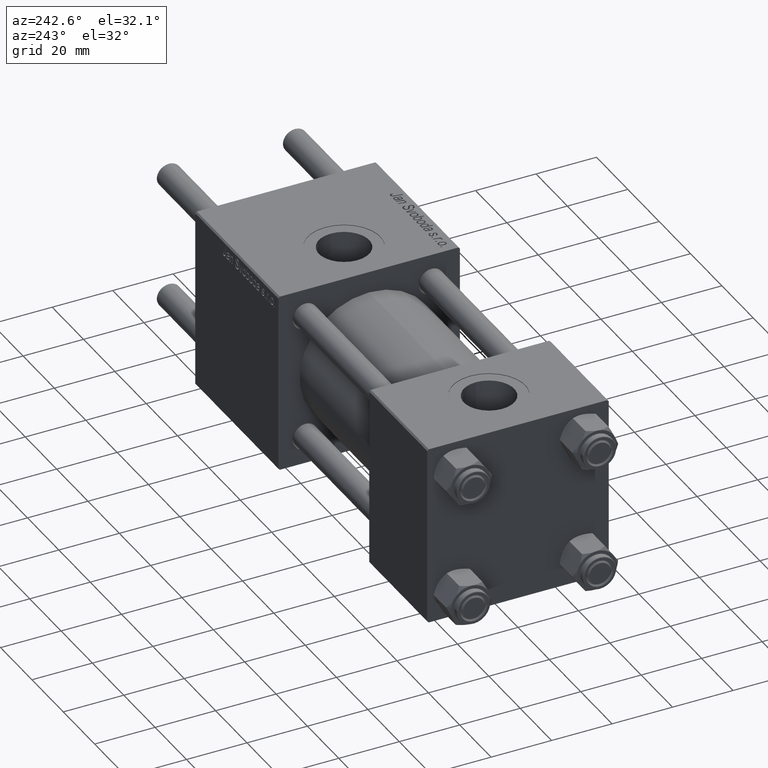
[diagram: clean part render]
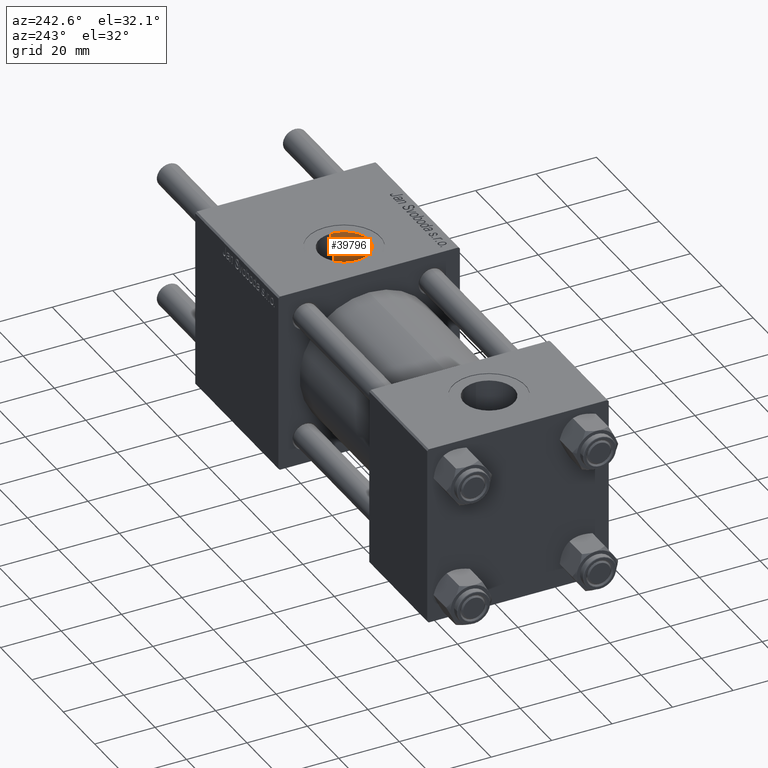
[diagram: same view with one face highlighted and labeled with its STEP entity id]
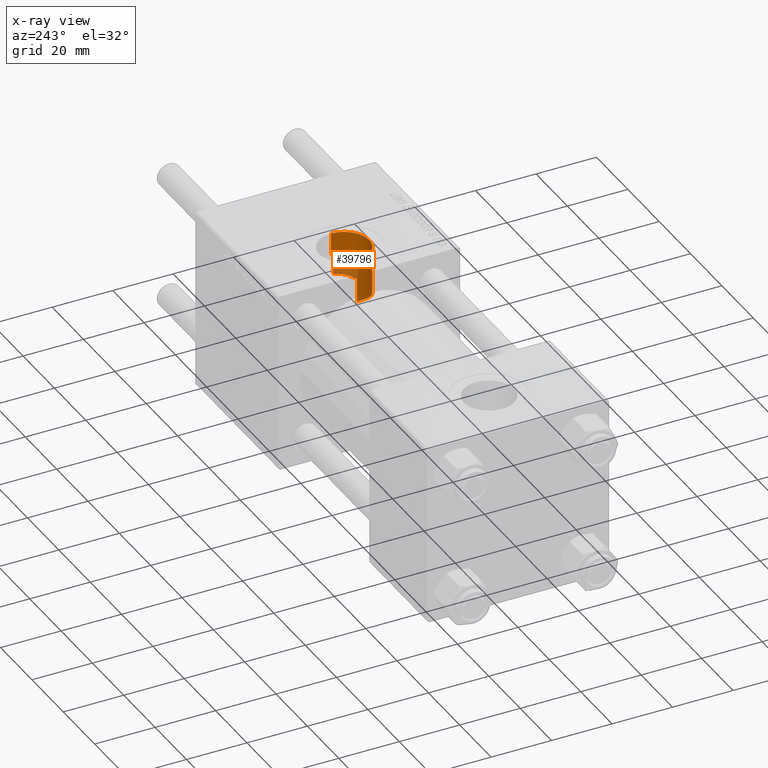
[diagram: x-ray of the same camera — body ghosted, the highlighted face saturated]
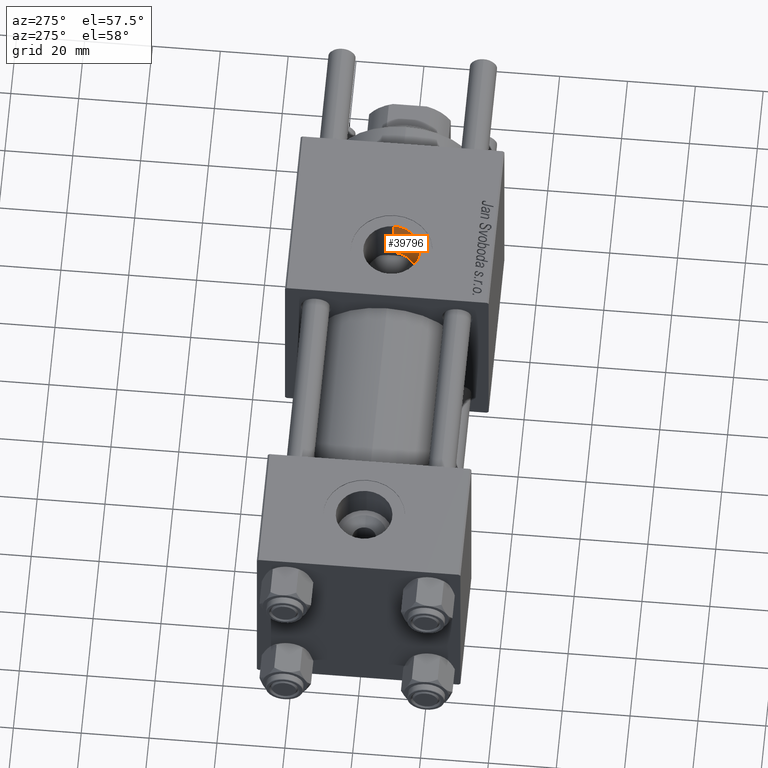
[diagram: same view with one face highlighted and labeled with its STEP entity id]
A machine part, auxiliary view. The second image highlights one B-rep face of the part: STEP entity #39796.
The next image is the same camera in x-ray: the body ghosted, the highlighted face saturated — about 10% of this face is hidden behind the body in this view.
A second angle (auxiliary view) of the same face is appended — the face is thin or edge-on in the first view.
In plain terms, the highlighted cylindrical surface (edge-blend (fillet) strip) has radius 8.33 mm, axis along (0, 0, -1).
Its self-contained STEP definition (entity closure, byte-faithful):
#82 = DIRECTION ( 'NONE',  ( -0.000000000000000000, -0.000000000000000000, 1.000000000000000000 ) ) ;
#244 = ORIENTED_EDGE ( 'NONE', *, *, #18734, .F. ) ;
#720 = CARTESIAN_POINT ( 'NONE',  ( 111.0000000000000000, -3.469446951953613794E-15, 29.79999999999999716 ) ) ;
#784 = ORIENTED_EDGE ( 'NONE', *, *, #55874, .F. ) ;
#1014 = LINE ( 'NONE', #19743, #27698 ) ;
#1414 = CYLINDRICAL_SURFACE ( 'NONE', #3961, 8.330000000000003624 ) ;
#3212 = CARTESIAN_POINT ( 'NONE',  ( 104.8421395764249837, -5.622509492967815881, 14.44759832893447360 ) ) ;
#3794 = CARTESIAN_POINT ( 'NONE',  ( 104.1369027071221751, -4.736043274220092414, 14.76252165391442794 ) ) ;
#3961 = AXIS2_PLACEMENT_3D ( 'NONE', #46964, #6157, #24312 ) ;
#4088 = CARTESIAN_POINT ( 'NONE',  ( 105.1064272110299385, -5.898864207807588578, 14.33631558793831573 ) ) ;
#4838 = CARTESIAN_POINT ( 'NONE',  ( 119.2999999999999829, -0.7063285354565423946, 52.79999999999999716 ) ) ;
#5445 = CARTESIAN_POINT ( 'NONE',  ( 118.2557022334251258, -4.107191428843018244, 14.94947048340120332 ) ) ;
#5742 = CARTESIAN_POINT ( 'NONE',  ( 119.2999999999999829, -0.7063285354565423946, 15.48389808801387701 ) ) ;
#6157 = DIRECTION ( 'NONE',  ( 0.000000000000000000, 0.000000000000000000, -1.000000000000000000 ) ) ;
#6344 = DIRECTION ( 'NONE',  ( 0.000000000000000000, 0.000000000000000000, -1.000000000000000000 ) ) ;
#6620 = CARTESIAN_POINT ( 'NONE',  ( 116.2310764146980091, -6.491922975836205367, 14.07719584522191347 ) ) ;
#6635 = VERTEX_POINT ( 'NONE', #50222 ) ;
#7681 = CARTESIAN_POINT ( 'NONE',  ( 106.5580543014319232, -7.088758972554062510, 13.78970152060303711 ) ) ;
#7963 = CARTESIAN_POINT ( 'NONE',  ( 104.3580999100944950, -5.041529647880462761, 14.66044642165734757 ) ) ;
#8703 = CARTESIAN_POINT ( 'NONE',  ( 119.3300000000000125, 2.755455270027974659E-15, 22.50000000000000355 ) ) ;
#8853 = CARTESIAN_POINT ( 'NONE',  ( 102.6699999999996180, -2.713081726590588117E-14, 15.50000000000020428 ) ) ;
#9901 = CARTESIAN_POINT ( 'NONE',  ( 115.0719793388101806, -7.275582495151264872, 13.68755679569670036 ) ) ;
#10168 = EDGE_CURVE ( 'NONE', #58283, #13254, #54926, .T. ) ;
#11850 = EDGE_CURVE ( 'NONE', #22007, #13254, #20757, .T. ) ;
#12725 = CARTESIAN_POINT ( 'NONE',  ( 102.6985123997140477, -0.7916320528489119157, 15.48462509825850653 ) ) ;
#13250 = EDGE_CURVE ( 'NONE', #25769, #23843, #56836, .T. ) ;
#13254 = VERTEX_POINT ( 'NONE', #42074 ) ;
#14127 = CARTESIAN_POINT ( 'NONE',  ( 119.2999999999999829, -0.7063285354565423946, 15.48389808801387701 ) ) ;
#14950 = CARTESIAN_POINT ( 'NONE',  ( 117.6814859054843367, -4.986894924185446776, 14.67899340481585746 ) ) ;
#15096 = VECTOR ( 'NONE', #82, 1000.000000000000000 ) ;
#15285 = CARTESIAN_POINT ( 'NONE',  ( 102.6700000000000017, -3.469446951953613794E-15, 52.79999999999999716 ) ) ;
#15732 = AXIS2_PLACEMENT_3D ( 'NONE', #55844, #33185, #43024 ) ;
#17177 = CARTESIAN_POINT ( 'NONE',  ( 103.7356139241942827, -4.094008462183724717, 14.95330218343579709 ) ) ;
#17231 = EDGE_CURVE ( 'NONE', #25769, #6635, #23572, .T. ) ;
#18734 = EDGE_CURVE ( 'NONE', #30753, #58283, #40816, .T. ) ;
#19743 = CARTESIAN_POINT ( 'NONE',  ( 119.3300000000000125, -2.449316168263869032E-15, 52.79999999999999716 ) ) ;
#20757 = B_SPLINE_CURVE_WITH_KNOTS ( 'NONE', 3,
 ( #54130, #7681, #26124, #4088, #3212, #7963, #3794, #17177, #44596, #49670, #35952, #35357, #49072, #12725, #44302, #8853 ),
 .UNSPECIFIED., .F., .F.,
 ( 4, 2, 2, 2, 2, 2, 2, 4 ),
 ( 1.762687342693953287E-17, 0.002343612196725057811, 0.003515418295087579994, 0.004687224393450101743, 0.005859030491812623059, 0.007030836590175145243, 0.008202642688537667426, 0.009374448786900189609 ),
 .UNSPECIFIED. ) ;
#22007 = VERTEX_POINT ( 'NONE', #23567 ) ;
#22536 = EDGE_LOOP ( 'NONE', ( #244, #50971, #45713, #26173, #49318, #784, #40518, #31304 ) ) ;
#22721 = DIRECTION ( 'NONE',  ( -0.000000000000000000, -0.000000000000000000, -1.000000000000000000 ) ) ;
#23567 = CARTESIAN_POINT ( 'NONE',  ( 107.2451498032544919, -7.435724578008534813, 13.59999999999999076 ) ) ;
#23572 = LINE ( 'NONE', #4838, #15096 ) ;
#23596 = CARTESIAN_POINT ( 'NONE',  ( 116.9996026483513276, -5.789379398717359848, 14.38096412590969564 ) ) ;
#23843 = VERTEX_POINT ( 'NONE', #39145 ) ;
#23890 = CARTESIAN_POINT ( 'NONE',  ( 117.4654438345355487, -5.264046141787121158, 14.58145607373045571 ) ) ;
#24312 = DIRECTION ( 'NONE',  ( -1.000000000000000000, 0.000000000000000000, 0.000000000000000000 ) ) ;
#24474 = CARTESIAN_POINT ( 'NONE',  ( 118.7215032992636736, -3.145651711574988241, 15.18130506059506679 ) ) ;
#25769 = VERTEX_POINT ( 'NONE', #14127 ) ;
#26124 = CARTESIAN_POINT ( 'NONE',  ( 105.9411433775953384, -6.660665606237818892, 14.00684504084867754 ) ) ;
#26173 = ORIENTED_EDGE ( 'NONE', *, *, #17231, .F. ) ;
#26694 = CARTESIAN_POINT ( 'NONE',  ( 102.6700000000000017, -3.469446951953613794E-15, 29.79999999999999716 ) ) ;
#27698 = VECTOR ( 'NONE', #6344, 1000.000000000000000 ) ;
#28359 = CARTESIAN_POINT ( 'NONE',  ( 115.3773959923152148, -7.095733675622498460, 13.78217589145789645 ) ) ;
#29233 = CARTESIAN_POINT ( 'NONE',  ( 118.5780231920914360, -3.476751477085508135, 15.10853693558145494 ) ) ;
#29456 = EDGE_CURVE ( 'NONE', #50852, #6635, #30951, .T. ) ;
#30753 = VERTEX_POINT ( 'NONE', #52883 ) ;
#30951 = B_SPLINE_CURVE_WITH_KNOTS ( 'NONE', 3,
 ( #56399, #51929, #56684, #48036 ),
 .UNSPECIFIED., .F., .F.,
 ( 4, 4 ),
 ( 0.0007063285354565328363, 0.001412657070913077816 ),
 .UNSPECIFIED. ) ;
#31304 = ORIENTED_EDGE ( 'NONE', *, *, #10168, .F. ) ;
#32277 = DIRECTION ( 'NONE',  ( 0.000000000000000000, 0.000000000000000000, -1.000000000000000000 ) ) ;
#32816 = CARTESIAN_POINT ( 'NONE',  ( 118.0762267006177098, -4.408899020335755203, 14.86282536370445229 ) ) ;
#33185 = DIRECTION ( 'NONE',  ( 0.000000000000000000, 0.000000000000000000, 1.000000000000000000 ) ) ;
#33828 = FACE_OUTER_BOUND ( 'NONE', #22536, .T. ) ;
#35105 = AXIS2_PLACEMENT_3D ( 'NONE', #720, #22721, #40905 ) ;
#35357 = CARTESIAN_POINT ( 'NONE',  ( 102.8906515532532637, -1.943315834972990430, 15.38227098439064022 ) ) ;
#35952 = CARTESIAN_POINT ( 'NONE',  ( 103.1052114789570311, -2.685204437881589801, 15.27024604249924522 ) ) ;
#36749 = VECTOR ( 'NONE', #32277, 1000.000000000000000 ) ;
#38922 = EDGE_CURVE ( 'NONE', #30753, #50852, #1014, .T. ) ;
#39145 = CARTESIAN_POINT ( 'NONE',  ( 114.7548501967455081, -7.435724578008534813, 13.59999999999999076 ) ) ;
#39796 = ADVANCED_FACE ( 'NONE', ( #33828 ), #1414, .F. ) ;
#40518 = ORIENTED_EDGE ( 'NONE', *, *, #11850, .T. ) ;
#40816 = CIRCLE ( 'NONE', #35105, 8.330000000000003624 ) ;
#40905 = DIRECTION ( 'NONE',  ( 1.000000000000000000, 0.000000000000000000, 0.000000000000000000 ) ) ;
#41786 = CARTESIAN_POINT ( 'NONE',  ( 114.7548501967455081, -7.435724578008534813, 13.59999999999999076 ) ) ;
#42074 = CARTESIAN_POINT ( 'NONE',  ( 102.6699999999996180, -2.713081726590588117E-14, 15.50000000000020428 ) ) ;
#43024 = DIRECTION ( 'NONE',  ( 1.000000000000000000, 0.000000000000000000, 0.000000000000000000 ) ) ;
#44252 = CIRCLE ( 'NONE', #15732, 8.330000000000003624 ) ;
#44302 = CARTESIAN_POINT ( 'NONE',  ( 102.6700000000000301, -0.3932737753490447297, 15.50000000000000178 ) ) ;
#44596 = CARTESIAN_POINT ( 'NONE',  ( 103.5555123538905207, -3.757474466741724584, 15.04203335714862710 ) ) ;
#45713 = ORIENTED_EDGE ( 'NONE', *, *, #29456, .T. ) ;
#46252 = CARTESIAN_POINT ( 'NONE',  ( 119.2379181272459761, -1.435846766692881138, 15.45061967576075013 ) ) ;
#46964 = CARTESIAN_POINT ( 'NONE',  ( 111.0000000000000000, -3.469446951953613794E-15, 52.79999999999999716 ) ) ;
#47420 = CARTESIAN_POINT ( 'NONE',  ( 116.7527035097904502, -6.034536163537686626, 14.27924648151569897 ) ) ;
#48036 = CARTESIAN_POINT ( 'NONE',  ( 119.2999999999999829, -0.7063285354565423946, 22.48891060056044111 ) ) ;
#49072 = CARTESIAN_POINT ( 'NONE',  ( 102.8089720379881413, -1.564748737126397504, 15.42568822226018455 ) ) ;
#49318 = ORIENTED_EDGE ( 'NONE', *, *, #13250, .T. ) ;
#49670 = CARTESIAN_POINT ( 'NONE',  ( 103.2388751121312396, -3.050237885181526387, 15.20123122413415828 ) ) ;
#50222 = CARTESIAN_POINT ( 'NONE',  ( 119.2999999999999829, -0.7063285354565423946, 22.48891060056044111 ) ) ;
#50852 = VERTEX_POINT ( 'NONE', #8703 ) ;
#50971 = ORIENTED_EDGE ( 'NONE', *, *, #38922, .T. ) ;
#51019 = CARTESIAN_POINT ( 'NONE',  ( 115.9563515716283746, -6.704148802593676848, 13.97684504926374061 ) ) ;
#51929 = CARTESIAN_POINT ( 'NONE',  ( 119.3300000000000125, -0.2354428451521790588, 22.50000000000000355 ) ) ;
#52883 = CARTESIAN_POINT ( 'NONE',  ( 119.3300000000000125, -2.449316168263869821E-15, 29.79999999999999716 ) ) ;
#54130 = CARTESIAN_POINT ( 'NONE',  ( 107.2451498032544919, -7.435724578008534813, 13.59999999999999076 ) ) ;
#54926 = LINE ( 'NONE', #15285, #36749 ) ;
#55844 = CARTESIAN_POINT ( 'NONE',  ( 111.0000000000000000, -3.469446951953613794E-15, 13.59999999999999076 ) ) ;
#55874 = EDGE_CURVE ( 'NONE', #22007, #23843, #44252, .T. ) ;
#56399 = CARTESIAN_POINT ( 'NONE',  ( 119.3300000000000125, 2.755455270027974659E-15, 22.50000000000000355 ) ) ;
#56641 = CARTESIAN_POINT ( 'NONE',  ( 119.0832175232422827, -2.135847849508031526, 15.36739229984345556 ) ) ;
#56684 = CARTESIAN_POINT ( 'NONE',  ( 119.3200361445783102, -0.4708856903043605602, 22.49630535626710781 ) ) ;
#56836 = B_SPLINE_CURVE_WITH_KNOTS ( 'NONE', 3,
 ( #5742, #46252, #56641, #24474, #29233, #5445, #32816, #14950, #23890, #23596, #47420, #6620, #51019, #28359, #9901, #41786 ),
 .UNSPECIFIED., .F., .F.,
 ( 4, 2, 2, 2, 2, 2, 2, 4 ),
 ( 3.416651864263509077E-16, 0.002164281519508079021, 0.003246422279261940939, 0.004328563039015803290, 0.005410703798769665208, 0.006492844558523526259, 0.007574985318277389044, 0.008657126078031250963 ),
 .UNSPECIFIED. ) ;
#58283 = VERTEX_POINT ( 'NONE', #26694 ) ;